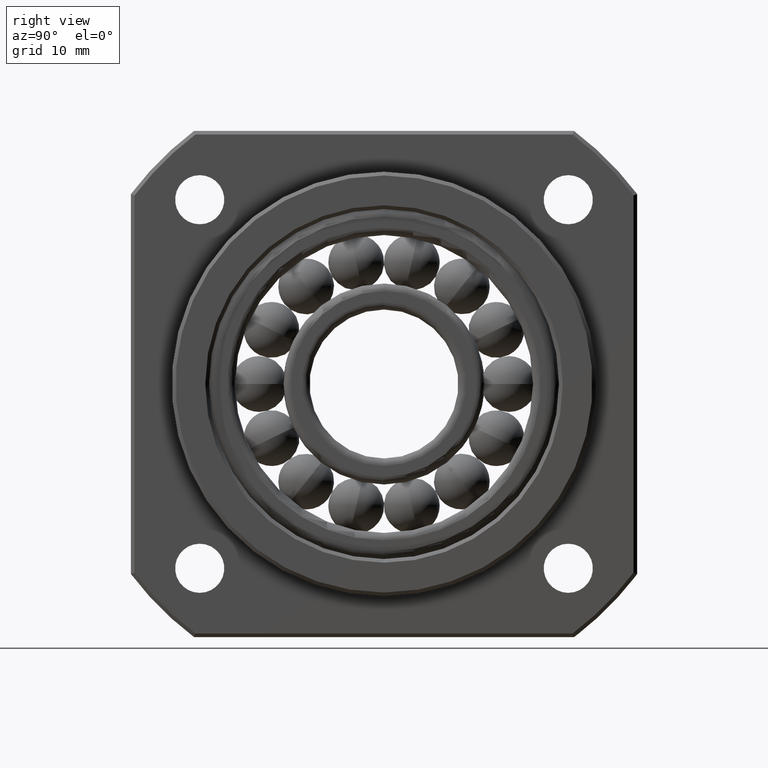
[diagram: clean part render]
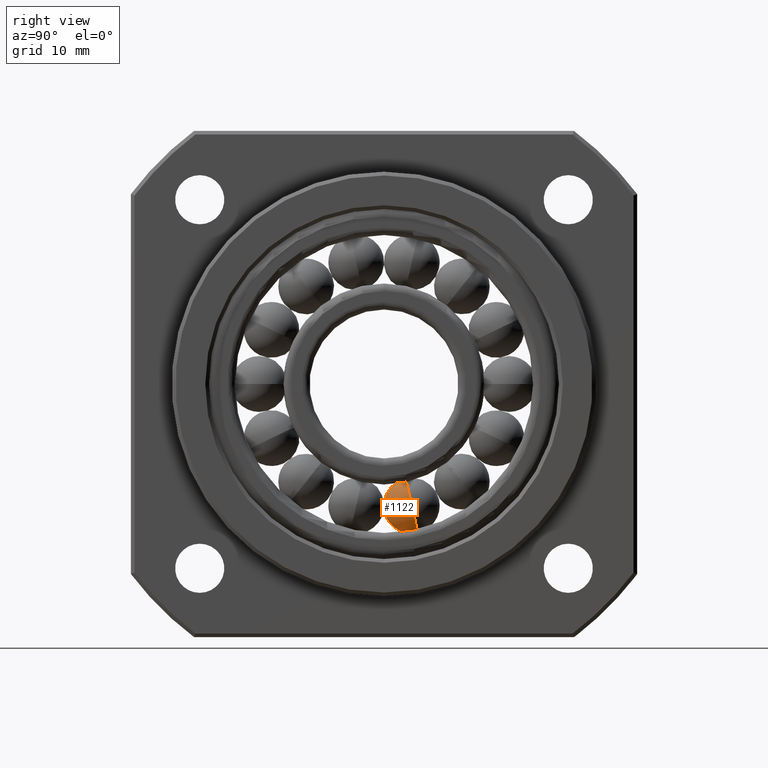
[diagram: same view with one face highlighted and labeled with its STEP entity id]
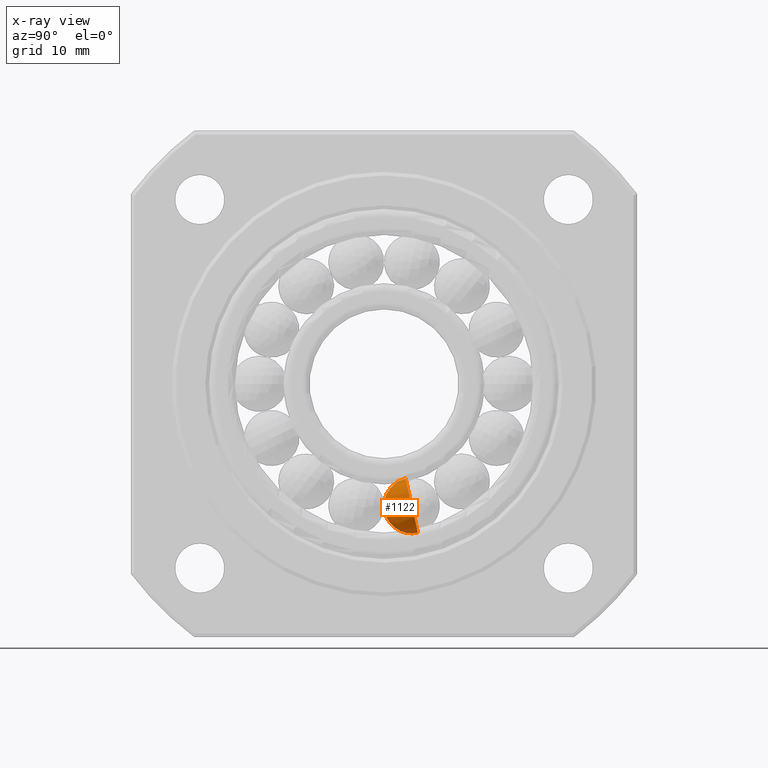
[diagram: x-ray of the same camera — body ghosted, the highlighted face saturated]
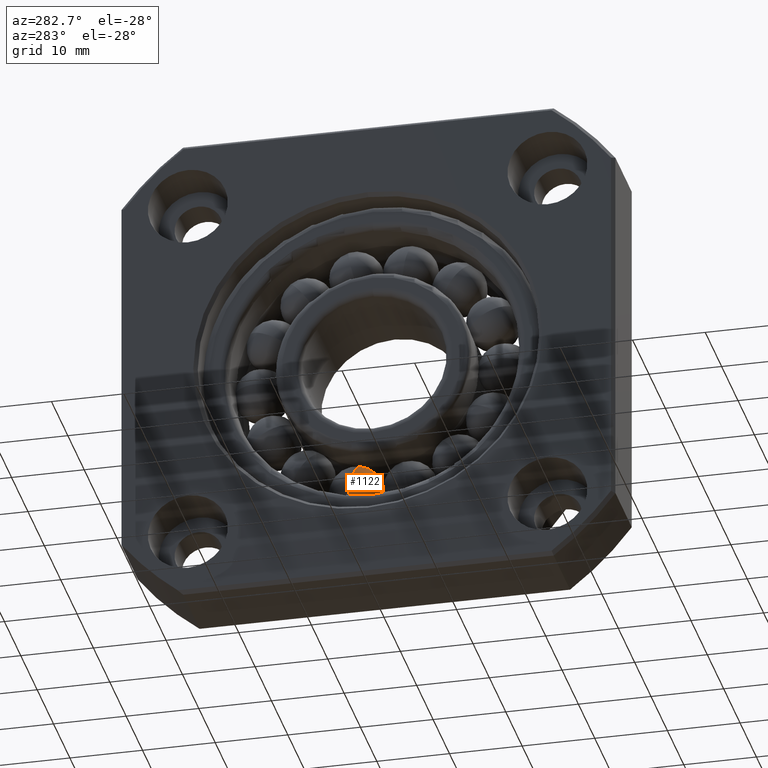
[diagram: same view with one face highlighted and labeled with its STEP entity id]
A machine part, right view. The second image highlights one B-rep face of the part: STEP entity #1122.
The next image is the same camera in x-ray: the body ghosted, the highlighted face saturated — about 0% of this face is hidden behind the body in this view.
A second angle (auxiliary view) of the same face is appended — the face is thin or edge-on in the first view.
In plain terms, the highlighted spherical surface has radius 3.75 mm.
Its self-contained STEP definition (entity closure, byte-faithful):
#766 = DIRECTION ( 'NONE',  ( 0.0000000000000000000, 0.2225209339563245500, -0.9749279121818212900 ) ) ;
#767 = DIRECTION ( 'NONE',  ( -0.0000000000000000000, 0.9749279121818212900, 0.2225209339563245500 ) ) ;
#768 = CARTESIAN_POINT ( 'NONE',  ( 10.00000000000000200, 3.727225643768437500, -16.33004252904550700 ) ) ;
#769 = AXIS2_PLACEMENT_3D ( 'NONE', #768, #767, #766 ) ;
#771 = SPHERICAL_SURFACE ( 'NONE', #769, 3.749999999999999600 ) ;
#772 = FACE_OUTER_BOUND ( 'NONE', #1119, .T. ) ;
#773 = DIRECTION ( 'NONE',  ( 0.0000000000000000000, -0.2225209339563244700, 0.9749279121818212900 ) ) ;
#774 = DIRECTION ( 'NONE',  ( -0.0000000000000000000, 0.9749279121818212900, 0.2225209339563245000 ) ) ;
#775 = CARTESIAN_POINT ( 'NONE',  ( 10.00000000000000200, 3.727225643768437500, -16.33004252904550700 ) ) ;
#776 = AXIS2_PLACEMENT_3D ( 'NONE', #775, #774, #773 ) ;
#777 = CIRCLE ( 'NONE', #776, 3.749999999999999600 ) ;
#812 = CARTESIAN_POINT ( 'NONE',  ( 13.75000000000000200, 3.727225643768437500, -16.33004252904550700 ) ) ;
#1118 = EDGE_CURVE ( 'NONE', #2964, #1129, #777, .T. ) ;
#1119 = EDGE_LOOP ( 'NONE', ( #1120, #1121 ) ) ;
#1120 = ORIENTED_EDGE ( 'NONE', *, *, #1118, .F. ) ;
#1121 = ORIENTED_EDGE ( 'NONE', *, *, #2967, .T. ) ;
#1122 = ADVANCED_FACE ( 'NONE', ( #772 ), #771, .T. ) ;
#1129 = VERTEX_POINT ( 'NONE', #812 ) ;
#1265 = DIRECTION ( 'NONE',  ( 0.0000000000000000000, 0.2225209339563245800, -0.9749279121818212900 ) ) ;
#1266 = DIRECTION ( 'NONE',  ( 0.0000000000000000000, -0.9749279121818212900, -0.2225209339563246100 ) ) ;
#1267 = CARTESIAN_POINT ( 'NONE',  ( 10.00000000000000200, 3.727225643768437500, -16.33004252904550700 ) ) ;
#1268 = AXIS2_PLACEMENT_3D ( 'NONE', #1267, #1266, #1265 ) ;
#1269 = CIRCLE ( 'NONE', #1268, 3.749999999999999600 ) ;
#1277 = CARTESIAN_POINT ( 'NONE',  ( 6.250000000000001800, 3.727225643768437500, -16.33004252904550700 ) ) ;
#2964 = VERTEX_POINT ( 'NONE', #1277 ) ;
#2967 = EDGE_CURVE ( 'NONE', #2964, #1129, #1269, .T. ) ;